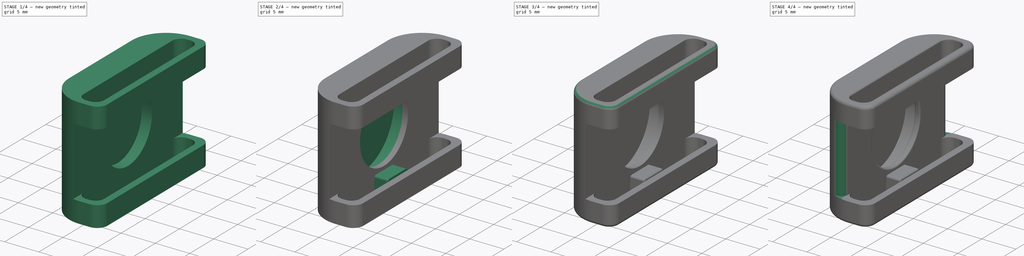
[diagram: build sequence overview — one tinted view per stage of 4, left to right]
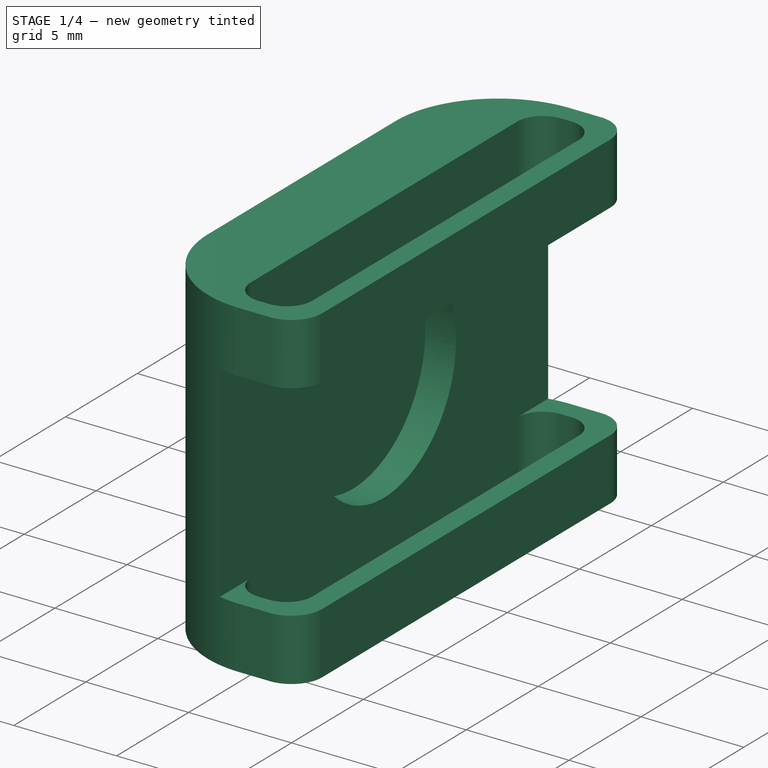
[diagram: stage 1 of 4 — iso view after this stage's code; geometry added in this stage tinted green]
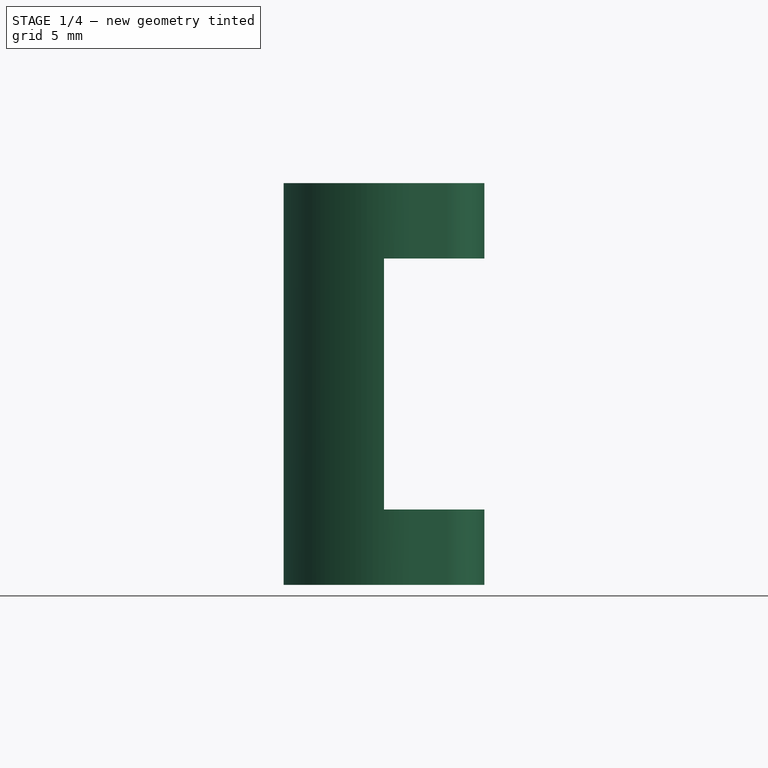
[diagram: stage 1 of 4 — front view after this stage's code; geometry added in this stage tinted green]
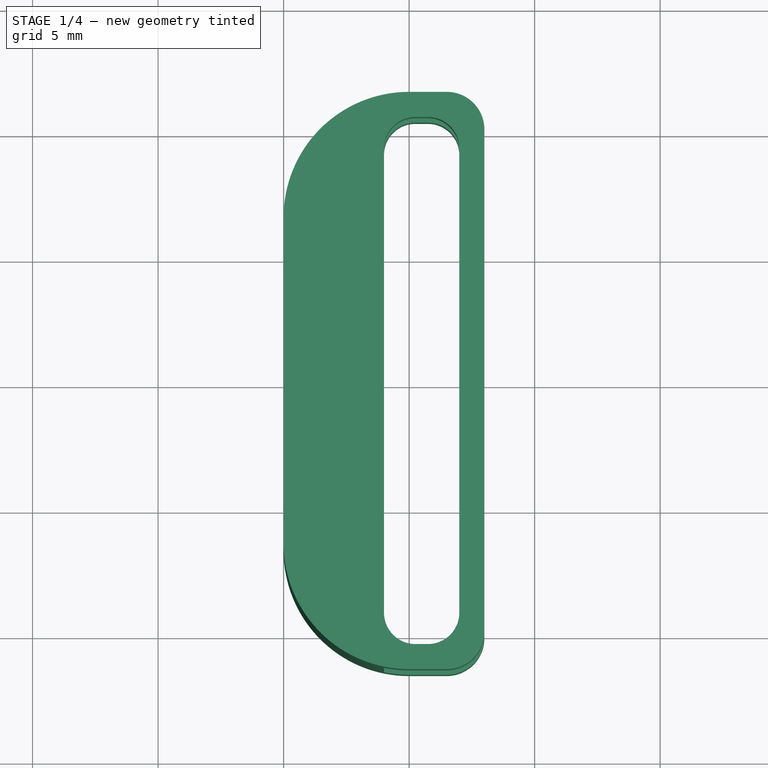
[diagram: stage 1 of 4 — top view after this stage's code; geometry added in this stage tinted green]
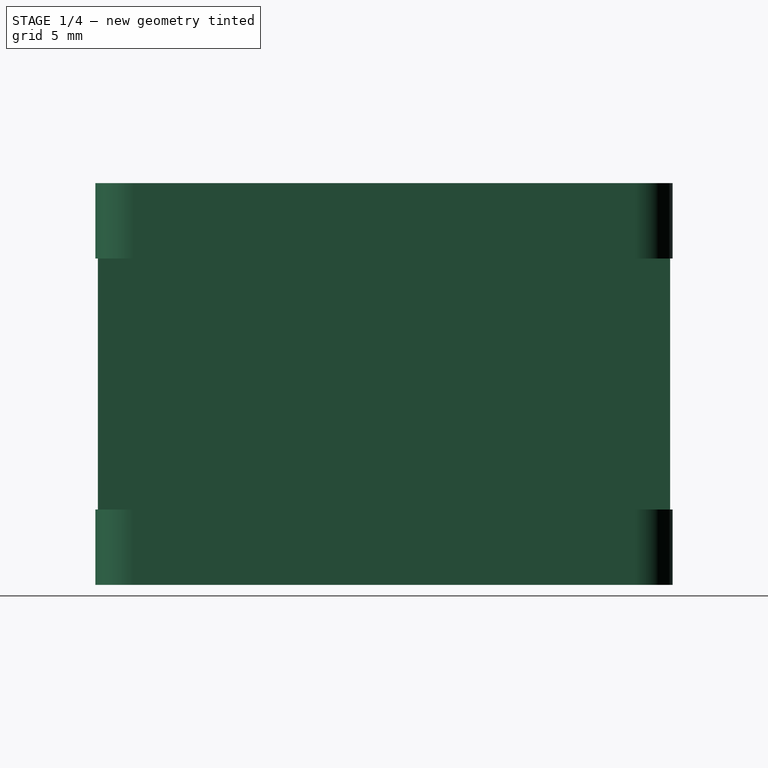
[diagram: stage 1 of 4 — right view after this stage's code; geometry added in this stage tinted green]
FCSTD DOCUMENT  (FreeCAD 1.0RUnknown)
Label: watch-band-rfid-v2
License: All rights reserved
LicenseURL: https://en.wikipedia.org/wiki/All_rights_reserved
objects: Sketcher::SketchObject×5, PartDesign::Fillet×5, PartDesign::Pad×3, PartDesign::Pocket×2, PartDesign::Body×2, PartDesign::Plane×1, PartDesign::SubShapeBinder×1, PartDesign::Boolean×1
note: 46 computed .brp shape members not serialized (recipe doc carries the construction recipe); baked Part::Feature solids carry a one-line shape summary decoded from their .brp

FEATURE [Sketcher::SketchObject] Sketch
  ArcFitTolerance = 1e-06
  AttachmentSupport = -> [XY_Plane]
  FullyConstrained = false
  MakeInternals = false
  MapMode = 5
  sketch-geometry (24):
    g0: LineSegment StartX=0 StartY=6.5 StartZ=0 EndX=0 EndY=-6.5 EndZ=0
    g1: LineSegment StartX=5 StartY=11.5 StartZ=0 EndX=6.5 EndY=11.5 EndZ=0
    g2: LineSegment StartX=8 StartY=10 StartZ=0 EndX=8 EndY=-10 EndZ=0
    g3: LineSegment StartX=5 StartY=-11.5 StartZ=0 EndX=6.5 EndY=-11.5 EndZ=0
    g4: LineSegment StartX=4 StartY=9.25 StartZ=0 EndX=4 EndY=-9.25 EndZ=0
    g5: LineSegment StartX=5.25 StartY=-10.5 StartZ=0 EndX=5.75 EndY=-10.5 EndZ=0
    g6: LineSegment StartX=7 StartY=-9.25 StartZ=0 EndX=7 EndY=9.25 EndZ=0
    g7: LineSegment StartX=5.75 StartY=10.5 StartZ=0 EndX=5.25 EndY=10.5 EndZ=0
    g8: LineSegment [constr] StartX=0 StartY=0 StartZ=0 EndX=11.9079 EndY=0 EndZ=0
    g9: ArcOfCircle CenterX=5 CenterY=6.5 CenterZ=0 NormalX=0 NormalY=0 NormalZ=1 AngleXU=0 Radius=5 StartAngle=1.5708 EndAngle=3.14159
    g10: GeomPoint [constr] X=0 Y=11.5 Z=0
    g11: ArcOfCircle CenterX=6.5 CenterY=10 CenterZ=0 NormalX=0 NormalY=0 NormalZ=1 AngleXU=0 Radius=1.5 StartAngle=0 EndAngle=1.5708
    g12: ArcOfCircle CenterX=5.75 CenterY=9.25 CenterZ=0 NormalX=0 NormalY=0 NormalZ=1 AngleXU=0 Radius=1.25 StartAngle=4e-16 EndAngle=1.5708
    g13: GeomPoint [constr] X=7 Y=10.5 Z=0
    g14: ArcOfCircle CenterX=5.25 CenterY=9.25 CenterZ=0 NormalX=0 NormalY=0 NormalZ=1 AngleXU=0 Radius=1.25 StartAngle=1.5708 EndAngle=3.14159
    g15: GeomPoint [constr] X=4 Y=10.5 Z=0
    g16: ArcOfCircle CenterX=5.25 CenterY=-9.25 CenterZ=0 NormalX=0 NormalY=0 NormalZ=1 AngleXU=0 Radius=1.25 StartAngle=3.14159 EndAngle=4.71239
    g17: GeomPoint [constr] X=4 Y=-10.5 Z=0
    g18: ArcOfCircle CenterX=5.75 CenterY=-9.25 CenterZ=0 NormalX=0 NormalY=0 NormalZ=1 AngleXU=0 Radius=1.25 StartAngle=4.71239 EndAngle=6.28319
    g19: GeomPoint [constr] X=7 Y=-10.5 Z=0
    g20: ArcOfCircle CenterX=6.5 CenterY=-10 CenterZ=0 NormalX=0 NormalY=0 NormalZ=1 AngleXU=0 Radius=1.5 StartAngle=4.71239 EndAngle=6.28319
    g21: GeomPoint [constr] X=8 Y=-11.5 Z=0
    g22: ArcOfCircle CenterX=5 CenterY=-6.5 CenterZ=0 NormalX=0 NormalY=0 NormalZ=1 AngleXU=0 Radius=5 StartAngle=3.14159 EndAngle=4.71239
    g23: GeomPoint [constr] X=0 Y=-11.5 Z=0
  constraints (54):
    c: PointOnObject(g10,g-2)
    c: Symmetric(g10,g23,g-1)
    c: Horizontal(g1)
    c: Vertical(g2)
    c: Horizontal(g3)
    c: Vertical(g6)
    c: Horizontal(g5)
    c: Horizontal(g7)
    c: DistanceY(g23,g10) = 23
    c: Distance(g17,g19) = 3
    c: Coincident(g8,g-1)
    c: Symmetric(g15,g17,g8)
    c: Distance(g15,g0) = 4
    c: Distance(g13,g1) = 1
    c: Horizontal(g8)
    c: PointOnObject(g10,g1)
    c: PointOnObject(g10,g0)
    c: Tangent(g1,g9) = 1.5708
    c: Tangent(g0,g9) = -1.5708
    c: Tangent(g1,g11) = 1.5708
    c: Tangent(g2,g11) = 1.5708
    c: PointOnObject(g13,g7)
    c: PointOnObject(g13,g6)
    c: Tangent(g7,g12) = -1.5708
    c: Tangent(g6,g12) = -1.5708
    c: PointOnObject(g15,g7)
    c: PointOnObject(g15,g4)
    c: Tangent(g7,g14) = -1.5708
    c: Tangent(g4,g14) = -1.5708
    c: PointOnObject(g17,g4)
    c: PointOnObject(g17,g5)
    c: Tangent(g4,g16) = -1.5708
    c: Tangent(g5,g16) = -1.5708
    c: PointOnObject(g19,g5)
    c: PointOnObject(g19,g6)
    c: Tangent(g5,g18) = -1.5708
    c: Tangent(g6,g18) = -1.5708
    c: PointOnObject(g21,g2)
    c: PointOnObject(g21,g3)
    c: Tangent(g2,g20) = 1.5708
    c: Tangent(g3,g20) = -1.5708
    c: PointOnObject(g23,g0)
    c: PointOnObject(g23,g3)
    c: Tangent(g0,g22) = -1.5708
    c: Tangent(g3,g22) = -1.5708
    c: Equal(g22,g9)
    c: Equal(g11,g20)
    c: Equal(g16,g18)
    c: Equal(g18,g14)
    c: Equal(g14,g12)
    c: Radius(g9) = 5
    c: Radius(g11) = 1.5
    c: Radius(g12) = 1.25
    c: Distance(g6,g2) = 1
FEATURE [PartDesign::Pad] Pad
  Direction = (0,0,1)
  Length = 16
  Length2 = 10
  Profile = -> Sketch
  ReferenceAxis = -> Sketch [N_Axis]
  Refine = true
  Suppressed = false
  Type = 0
FEATURE [Sketcher::SketchObject] Sketch001
  ArcFitTolerance = 1e-06
  AttachmentSupport = -> [Pad]
  ExternalGeometry = -> [Pad]
  FullyConstrained = true
  MakeInternals = false
  MapMode = 5
  Placement = pos=(8,0,0) rot=(0.57735,0.57735,0.57735;2.0944rad)
  sketch-geometry (8):
    g0: LineSegment [constr] StartX=-11.5 StartY=16 StartZ=0 EndX=10 EndY=0 EndZ=0
    g1: LineSegment [constr] StartX=11.5 StartY=16 StartZ=0 EndX=-10 EndY=0 EndZ=0
    g2: GeomPoint [constr] X=-0.75 Y=8 Z=0
    g3: LineSegment StartX=-13 StartY=13 StartZ=0 EndX=-13 EndY=3 EndZ=0
    g4: LineSegment StartX=-13 StartY=3 StartZ=0 EndX=11.5 EndY=3 EndZ=0
    g5: LineSegment StartX=11.5 StartY=3 StartZ=0 EndX=11.5 EndY=13 EndZ=0
    g6: LineSegment StartX=11.5 StartY=13 StartZ=0 EndX=-13 EndY=13 EndZ=0
    g7: GeomPoint [constr] X=-0.75 Y=8 Z=0
  constraints (17):
    c: Coincident(g0,g-4)
    c: Coincident(g0,g-6)
    c: Coincident(g1,g-5)
    c: Coincident(g1,g-6)
    c: Symmetric(g0,g0,g2)
    c: Coincident(g3,g4)
    c: Coincident(g4,g5)
    c: Coincident(g5,g6)
    c: Coincident(g6,g3)
    c: Vertical(g3)
    c: Vertical(g5)
    c: Horizontal(g4)
    c: Horizontal(g6)
    c: Symmetric(g5,g3,g7)
    c: Coincident(g7,g2)
    c: PointOnObject(g4,g-5)
    c: Distance(g5,g5) = 10
FEATURE [PartDesign::Pocket] Pocket
  BaseFeature = -> Pad
  Direction = (-1,0,0)
  Length = 4
  Length2 = 5
  Profile = -> Sketch001
  ReferenceAxis = -> Sketch001 [N_Axis]
  Refine = true
  Suppressed = false
  Type = 0
FEATURE [PartDesign::Body] Body001  label="Chip"
  AllowCompound = false
  Group = -> [DatumPlane,Binder,Sketch002,Pad001]
  Origin = -> Origin001
  Tip = -> Pad001
FEATURE [Sketcher::SketchObject] Sketch003
  ArcFitTolerance = 1e-06
  AttachmentSupport = -> [Pocket]
  ExternalGeometry = -> [Pocket]
  FullyConstrained = false
  MakeInternals = false
  MapMode = 5
  Placement = pos=(4,0,0) rot=(0.57735,0.57735,0.57735;2.0944rad)
  sketch-geometry (4):
    g0: LineSegment [constr] StartX=-10 StartY=16 StartZ=0 EndX=10 EndY=0 EndZ=0
    g1: LineSegment [constr] StartX=10 StartY=16 StartZ=0 EndX=-9.7586 EndY=0 EndZ=0
    g2: GeomPoint [constr] X=0 Y=8 Z=0
    g3: Circle CenterX=0 CenterY=8 CenterZ=0 NormalX=0 NormalY=0 NormalZ=1 AngleXU=0 Radius=5
  constraints (7):
    c: Coincident(g0,g-3)
    c: Coincident(g0,g-5)
    c: Coincident(g1,g-4)
    c: PointOnObject(g1,g-1)
    c: Symmetric(g0,g0,g2)
    c: Coincident(g3,g2)
    c: Diameter(g3) = 10
FEATURE [PartDesign::Pocket] Pocket001
  BaseFeature = -> Pocket
  Direction = (-1,0,0)
  Length = 1.5
  Length2 = 5
  Profile = -> Sketch003
  ReferenceAxis = -> Sketch003 [N_Axis]
  Refine = true
  Suppressed = false
  Type = 0
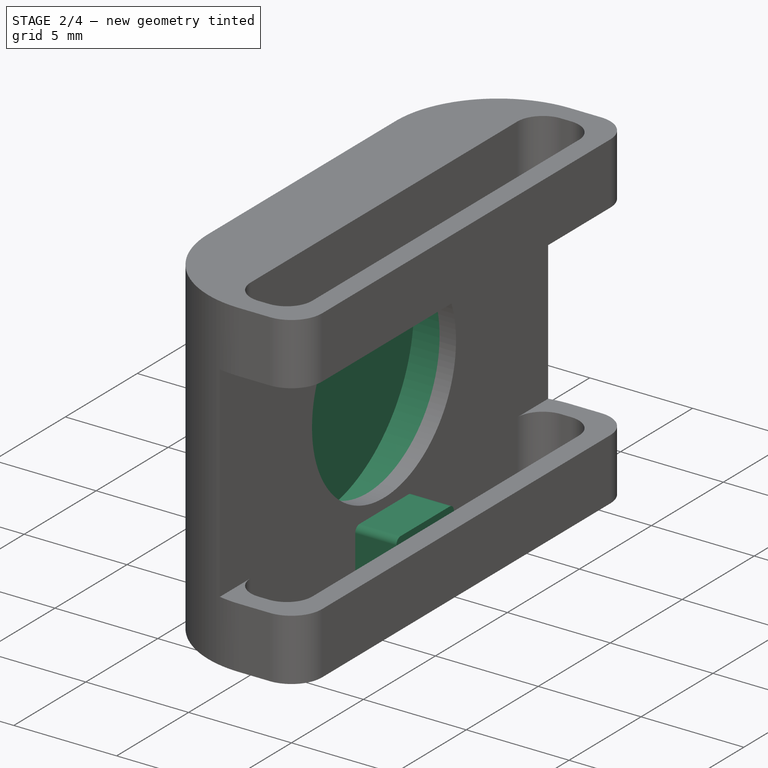
[diagram: stage 2 of 4 — iso view after this stage's code; geometry added in this stage tinted green]
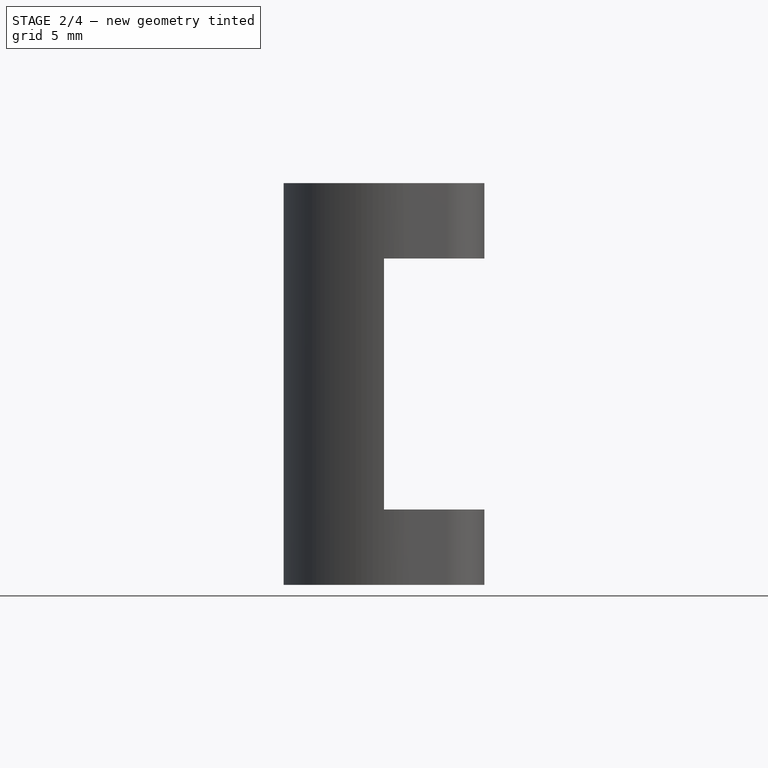
[diagram: stage 2 of 4 — front view after this stage's code; geometry added in this stage tinted green]
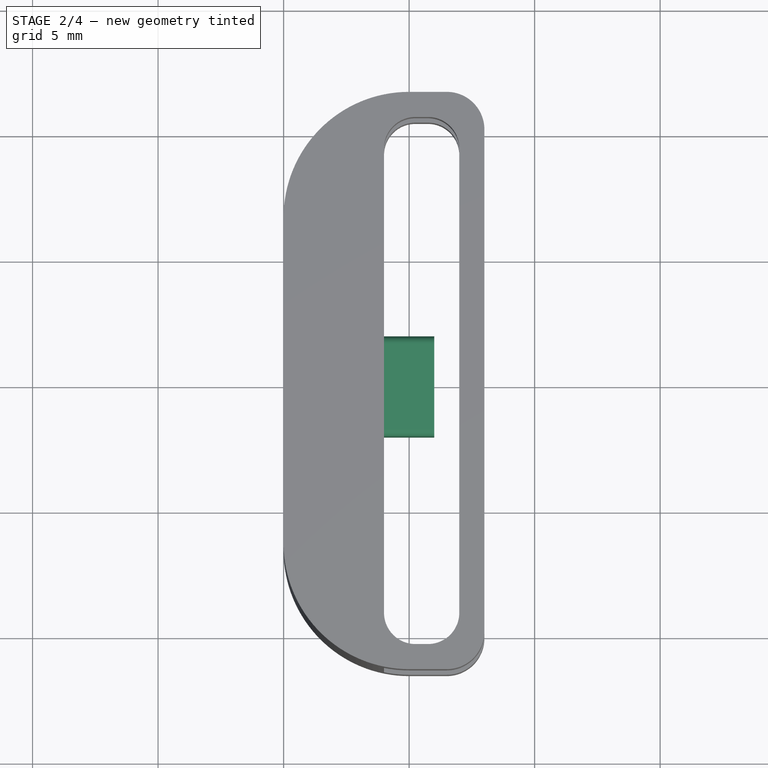
[diagram: stage 2 of 4 — top view after this stage's code; geometry added in this stage tinted green]
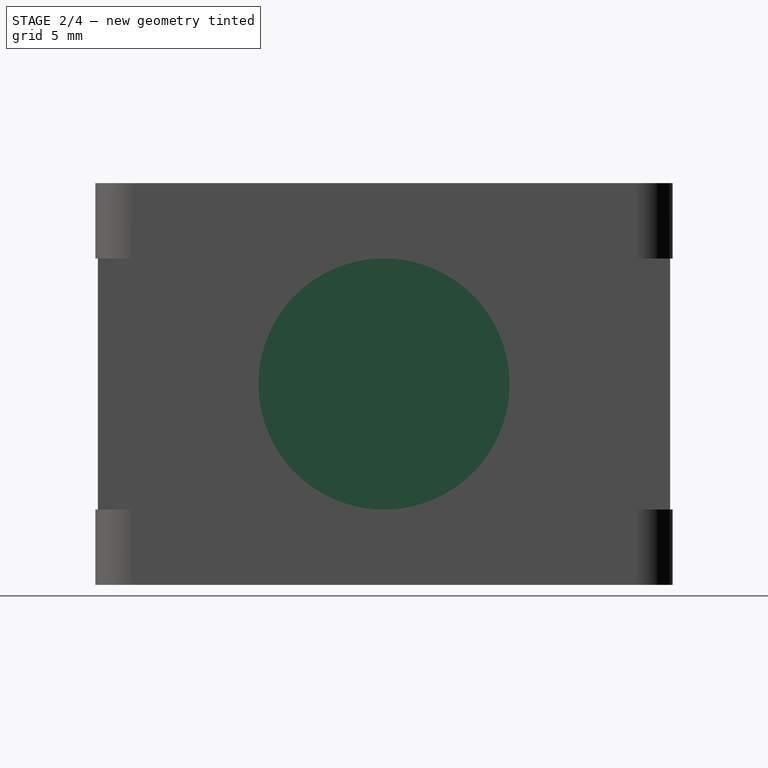
[diagram: stage 2 of 4 — right view after this stage's code; geometry added in this stage tinted green]
FEATURE [PartDesign::Plane] DatumPlane
  AttachmentOffset = pos=(0,0,2) rot=(0,0,1;0rad)
  AttachmentSupport = -> [YZ_Plane001]
  Length = 60
  MapMode = 5
  Placement = pos=(2,0,0) rot=(0.57735,0.57735,0.57735;2.0944rad)
  ResizeMode = 0
  Width = 60
FEATURE [PartDesign::SubShapeBinder] Binder
  BindCopyOnChange = 0
  BindMode = 0
  ClaimChildren = false
  Context = -> Body [Boolean.Body001.Binder.]
  Fuse = false
  MakeFace = true
  OffsetFill = false
  OffsetIntersection = false
  OffsetJoinType = 0
  OffsetOpenResult = false
  PartialLoad = false
  Refine = true
  Relative = true
  _Version = 2
FEATURE [Sketcher::SketchObject] Sketch002
  ArcFitTolerance = 1e-06
  AttachmentSupport = -> [DatumPlane]
  ExternalGeometry = -> [Binder]
  FullyConstrained = true
  MakeInternals = false
  MapMode = 5
  Placement = pos=(2,0,0) rot=(0.57735,0.57735,0.57735;2.0944rad)
  sketch-geometry (5):
    g0: LineSegment [constr] StartX=-10.5 StartY=16 StartZ=0 EndX=10.5 EndY=0 EndZ=0
    g1: LineSegment [constr] StartX=-10.5 StartY=0 StartZ=0 EndX=10.5 EndY=16 EndZ=0
    g2: GeomPoint [constr] X=0 Y=8 Z=0
    g3: Circle CenterX=0 CenterY=8 CenterZ=0 NormalX=0 NormalY=0 NormalZ=1 AngleXU=0 Radius=6.65
    g4: GeomPoint [constr] X=0 Y=8 Z=0
  constraints (9):
    c: Coincident(g0,g-3)
    c: PointOnObject(g0,g-4)
    c: Coincident(g1,g-4)
    c: Coincident(g1,g-3)
    c: PointOnObject(g2,g-2)
    c: Coincident(g3,g2)
    c: Diameter(g3) = 13.3
    c: Symmetric(g0,g0,g4)
    c: Coincident(g2,g4)
FEATURE [PartDesign::Pad] Pad001
  Direction = (1,0,0)
  Length = 1.2
  Length2 = 1.2
  Placement = pos=(2,0,0) rot=(0.57735,0.57735,0.57735;2.0944rad)
  Profile = -> Sketch002
  ReferenceAxis = -> Sketch002 [N_Axis]
  Refine = true
  Suppressed = false
  Type = 4
FEATURE [PartDesign::Boolean] Boolean
  BaseFeature = -> Pocket001
  Group = -> [Body001]
  Refine = true
  Suppressed = false
  Type = 1
  UsePlacement = true
FEATURE [Sketcher::SketchObject] Sketch004
  ArcFitTolerance = 1e-06
  AttachmentSupport = -> [Boolean]
  ExternalGeometry = -> [Boolean]
  FullyConstrained = true
  MakeInternals = false
  MapMode = 5
  Placement = pos=(4,0,0) rot=(0.57735,0.57735,0.57735;2.0944rad)
  sketch-geometry (13):
    g0: LineSegment StartX=-2 StartY=2.2 StartZ=0 EndX=-2 EndY=0.3 EndZ=0
    g1: LineSegment StartX=-1.7 StartY=0 StartZ=0 EndX=1.7 EndY=0 EndZ=0
    g2: LineSegment StartX=2 StartY=0.3 StartZ=0 EndX=2 EndY=2.2 EndZ=0
    g3: LineSegment StartX=1.7 StartY=2.5 StartZ=0 EndX=-1.7 EndY=2.5 EndZ=0
    g4: GeomPoint X=0 Y=2.5 Z=0
    g5: ArcOfCircle CenterX=1.7 CenterY=2.2 CenterZ=0 NormalX=0 NormalY=0 NormalZ=1 AngleXU=0 Radius=0.3 StartAngle=3e-16 EndAngle=1.5708
    g6: GeomPoint [constr] X=2 Y=2.5 Z=0
    g7: ArcOfCircle CenterX=-1.7 CenterY=2.2 CenterZ=0 NormalX=0 NormalY=0 NormalZ=1 AngleXU=0 Radius=0.3 StartAngle=1.5708 EndAngle=3.14159
    g8: GeomPoint [constr] X=-2 Y=2.5 Z=0
    g9: ArcOfCircle CenterX=-1.7 CenterY=0.3 CenterZ=0 NormalX=0 NormalY=0 NormalZ=1 AngleXU=0 Radius=0.3 StartAngle=3.14159 EndAngle=4.71239
    g10: GeomPoint [constr] X=-2 Y=0 Z=0
    g11: ArcOfCircle CenterX=1.7 CenterY=0.3 CenterZ=0 NormalX=0 NormalY=0 NormalZ=1 AngleXU=0 Radius=0.3 StartAngle=4.71239 EndAngle=6.28319
    g12: GeomPoint [constr] X=2 Y=0 Z=0
  constraints (29):
    c: Vertical(g0)
    c: Vertical(g2)
    c: Horizontal(g1)
    c: Horizontal(g3)
    c: PointOnObject(g12,g-3)
    c: Symmetric(g6,g8,g4)
    c: PointOnObject(g4,g-2)
    c: Distance(g12,g6) = 2.5
    c: Distance(g10,g12) = 4
    c: PointOnObject(g6,g3)
    c: PointOnObject(g6,g2)
    c: Tangent(g3,g5) = -1.5708
    c: Tangent(g2,g5) = -1.5708
    c: PointOnObject(g8,g0)
    c: PointOnObject(g8,g3)
    c: Tangent(g0,g7) = -1.5708
    c: Tangent(g3,g7) = -1.5708
    c: PointOnObject(g10,g0)
    c: PointOnObject(g10,g1)
    c: Tangent(g0,g9) = -1.5708
    c: Tangent(g1,g9) = -1.5708
    c: PointOnObject(g12,g1)
    c: PointOnObject(g12,g2)
    c: Tangent(g1,g11) = -1.5708
    c: Tangent(g2,g11) = -1.5708
    c: Equal(g7,g9)
    c: Equal(g9,g11)
    c: Equal(g11,g5)
    c: Radius(g7) = 0.3
FEATURE [PartDesign::Pad] Pad002
  BaseFeature = -> Boolean
  Direction = (1,0,0)
  Length = 2
  Length2 = 10
  Profile = -> Sketch004
  ReferenceAxis = -> Sketch004 [N_Axis]
  Refine = true
  Suppressed = false
  Type = 0
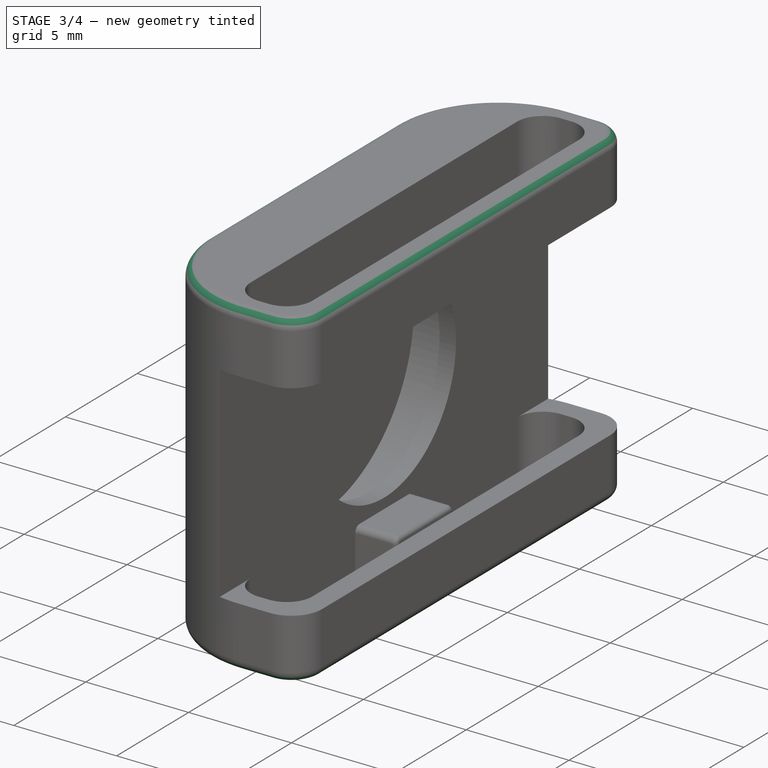
[diagram: stage 3 of 4 — iso view after this stage's code; geometry added in this stage tinted green]
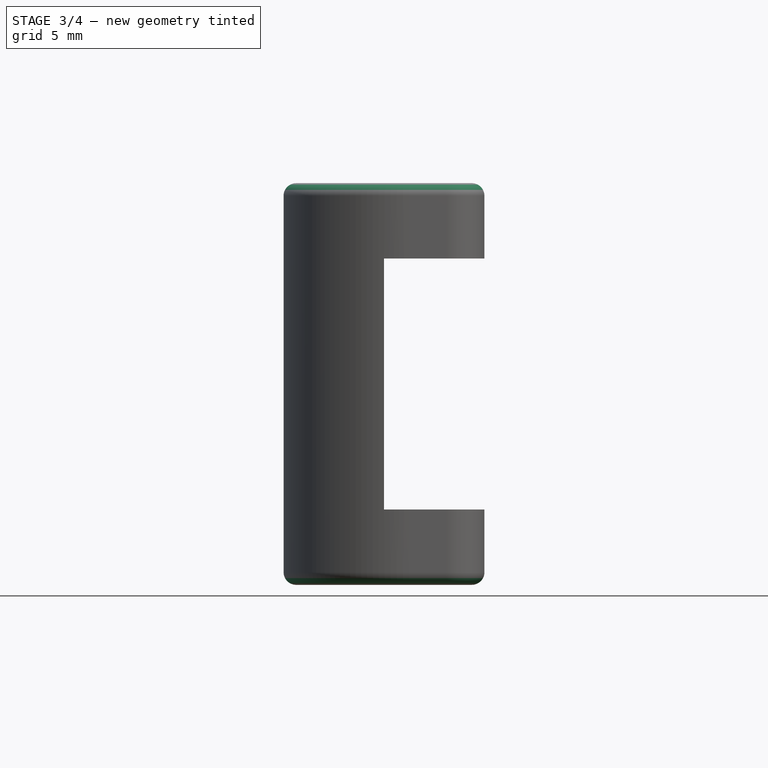
[diagram: stage 3 of 4 — front view after this stage's code; geometry added in this stage tinted green]
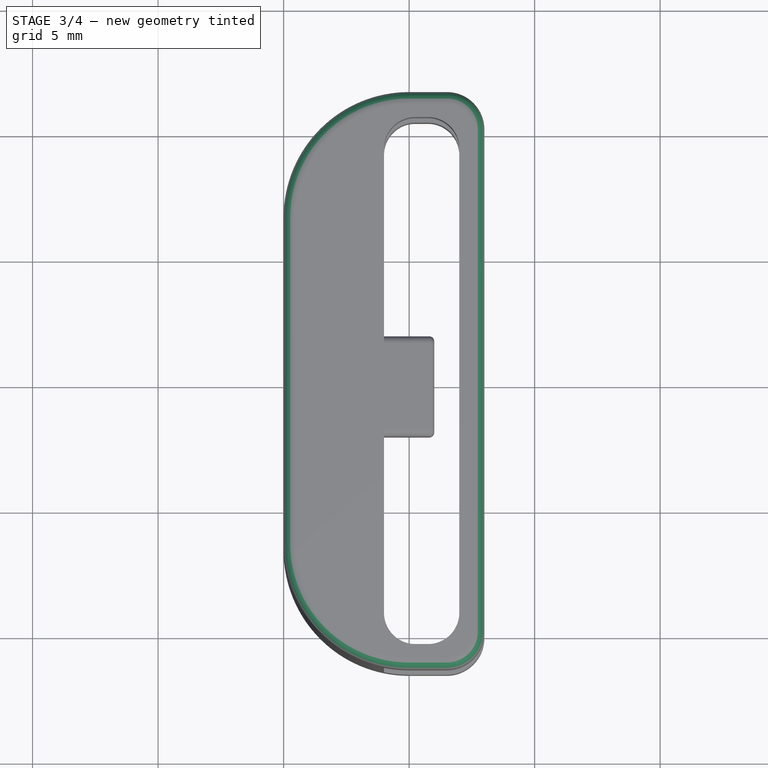
[diagram: stage 3 of 4 — top view after this stage's code; geometry added in this stage tinted green]
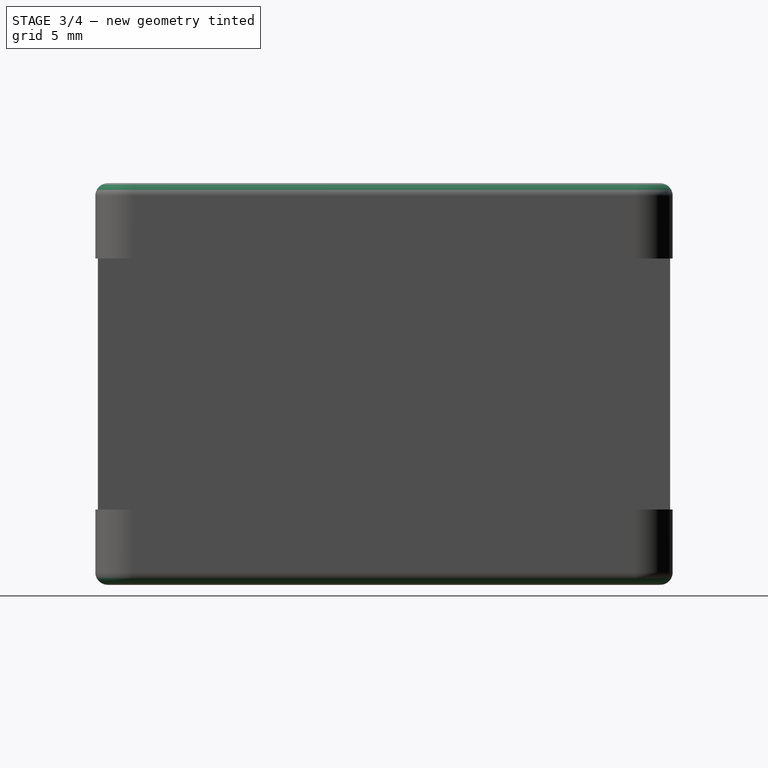
[diagram: stage 3 of 4 — right view after this stage's code; geometry added in this stage tinted green]
FEATURE [PartDesign::Fillet] Fillet
  Base = -> Pad002 [Edge114]
  BaseFeature = -> Pad002
  Radius = 0.2
  Refine = true
  SupportTransform = false
  Suppressed = false
  UseAllEdges = false
FEATURE [PartDesign::Fillet] Fillet001
  Base = -> Fillet [Edge85,Edge23]
  BaseFeature = -> Fillet
  Radius = 0.5
  Refine = true
  SupportTransform = false
  Suppressed = false
  UseAllEdges = false
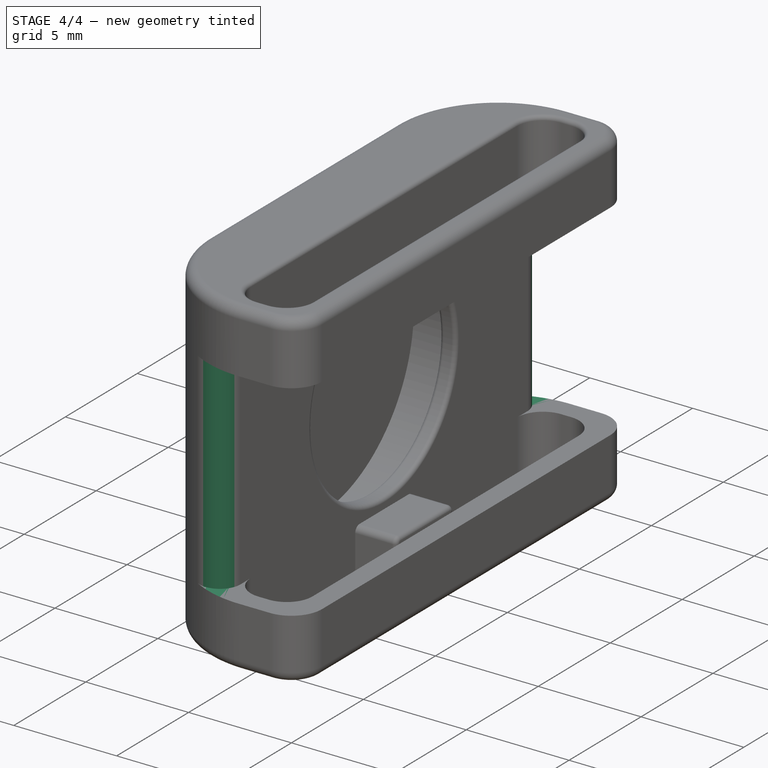
[diagram: stage 4 of 4 — iso view after this stage's code; geometry added in this stage tinted green]
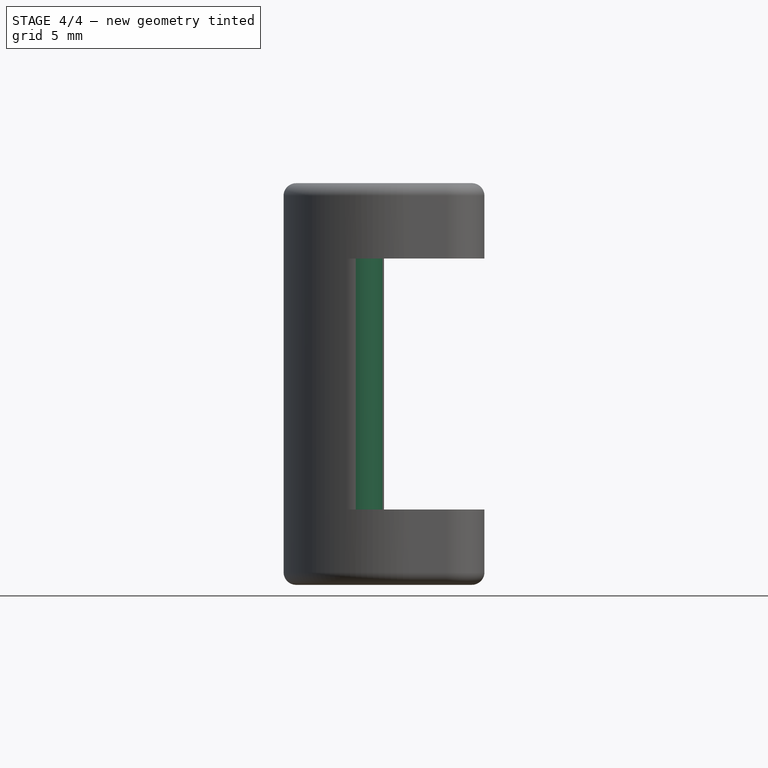
[diagram: stage 4 of 4 — front view after this stage's code; geometry added in this stage tinted green]
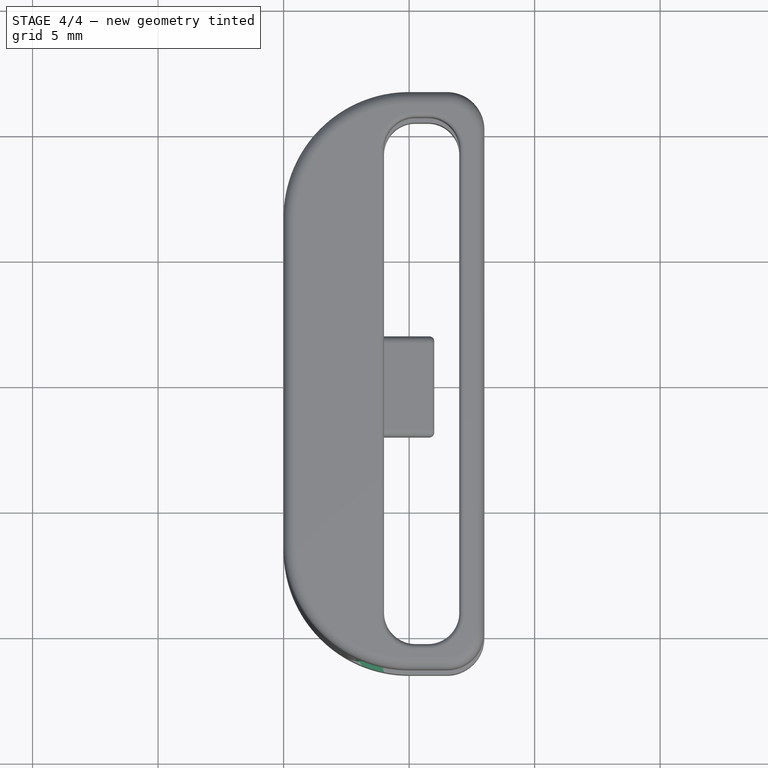
[diagram: stage 4 of 4 — top view after this stage's code; geometry added in this stage tinted green]
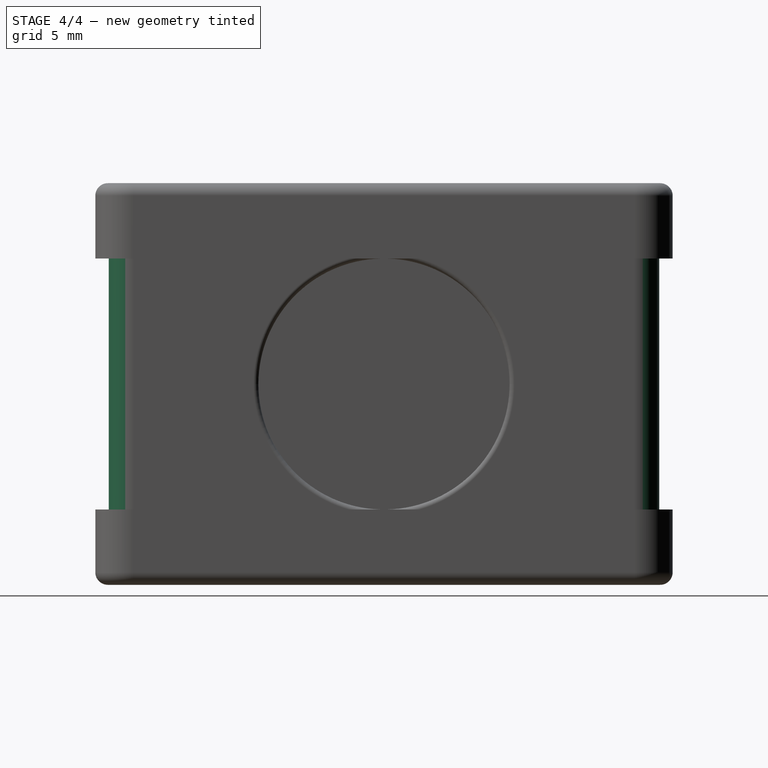
[diagram: stage 4 of 4 — right view after this stage's code; geometry added in this stage tinted green]
FEATURE [PartDesign::Fillet] Fillet002
  Base = -> Fillet001 [Edge19,Edge140]
  BaseFeature = -> Fillet001
  Radius = 0.2
  Refine = true
  SupportTransform = false
  Suppressed = false
  UseAllEdges = false
FEATURE [PartDesign::Fillet] Fillet003
  Base = -> Fillet002 [Edge83,Edge157]
  BaseFeature = -> Fillet002
  Radius = 0.2
  Refine = true
  SupportTransform = false
  Suppressed = false
  UseAllEdges = false
FEATURE [PartDesign::Fillet] Fillet004
  Base = -> Fillet003 [Edge18,Edge6]
  BaseFeature = -> Fillet003
  Radius = 1
  Refine = true
  SupportTransform = false
  Suppressed = false
  UseAllEdges = false
FEATURE [PartDesign::Body] Body  label="Band"
  AllowCompound = false
  Group = -> [Sketch,Pad,Sketch001,Pocket,Sketch003,Pocket001,Boolean,Sketch004,Pad002,Fillet,Fillet001,Fillet002,Fillet003,Fillet004]
  Origin = -> Origin
  Tip = -> Fillet004
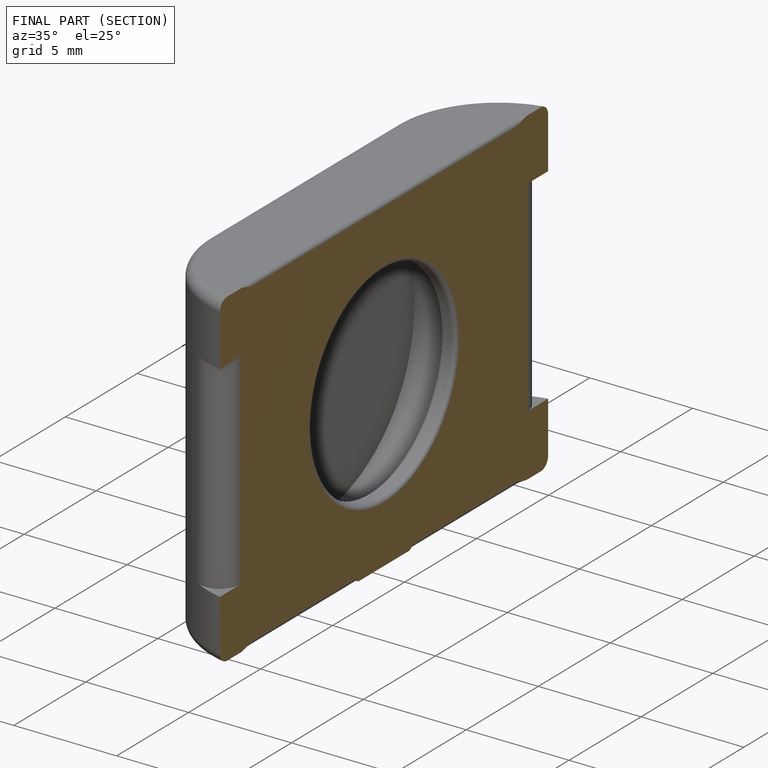
[diagram: finished part — half-section view (interior)]
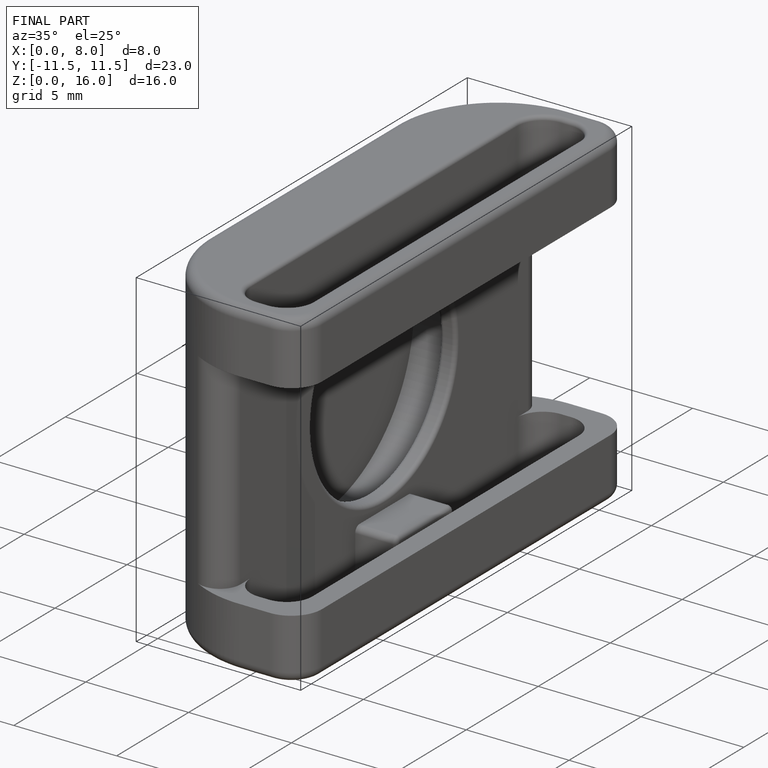
[diagram: finished part — iso view with bounding-box wireframe]
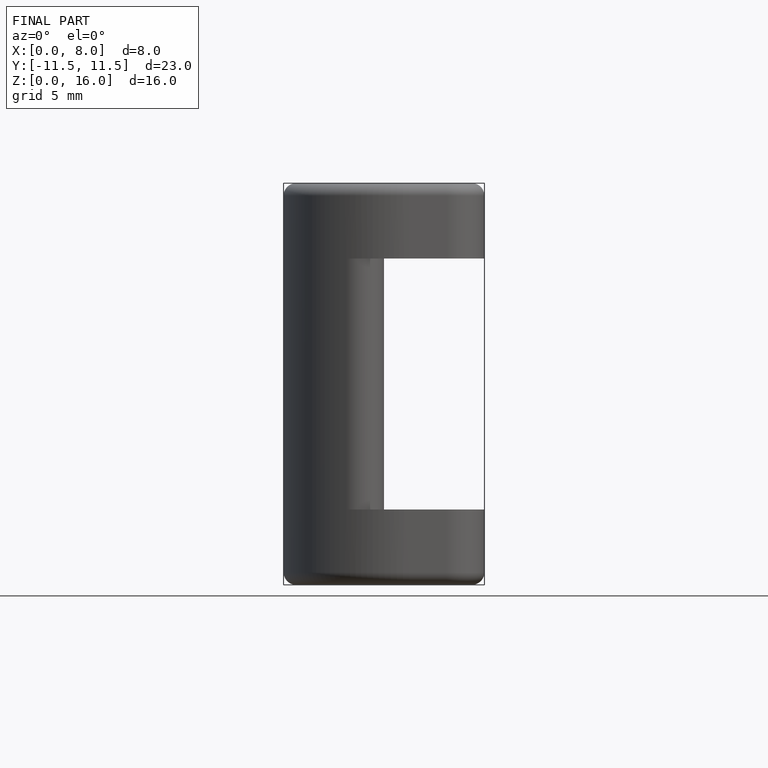
[diagram: finished part — front view with bounding-box wireframe]
